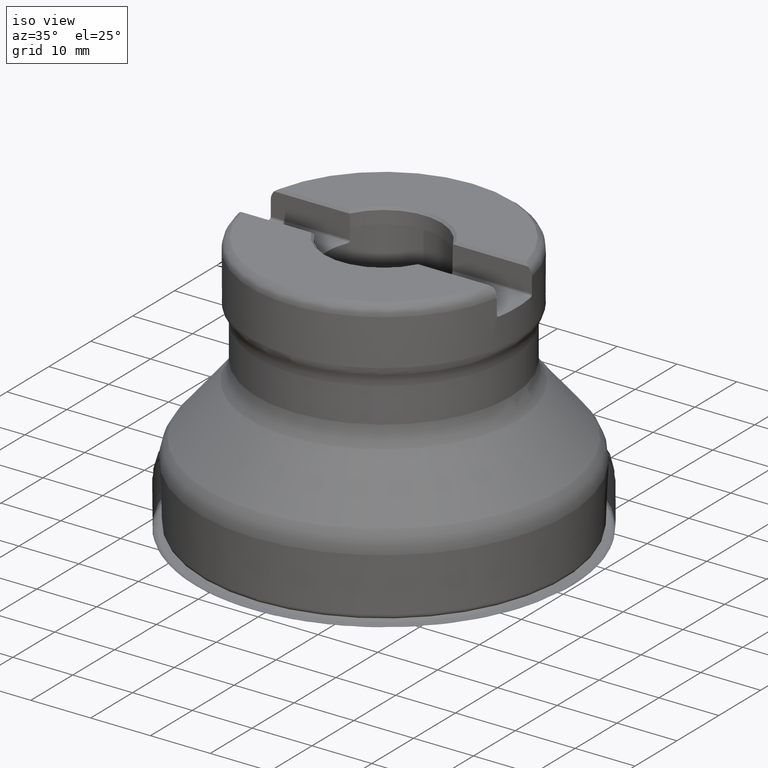
[diagram: clean part render]
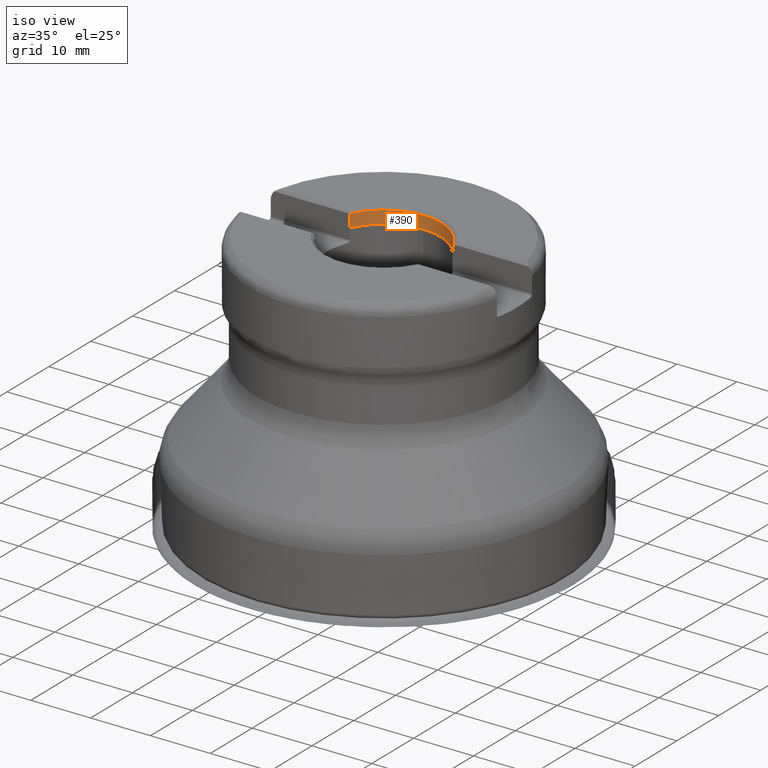
[diagram: same view with one face highlighted and labeled with its STEP entity id]
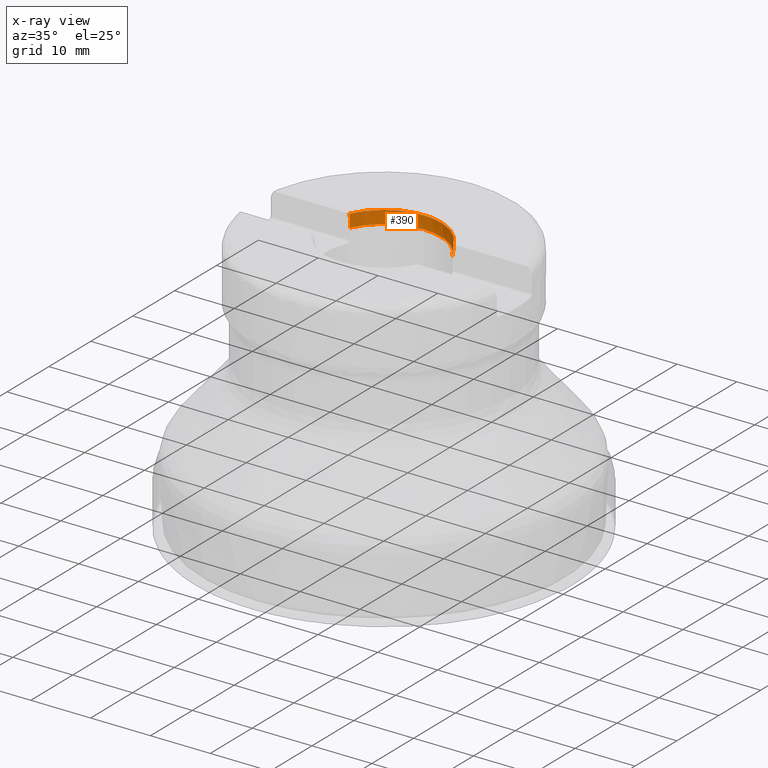
[diagram: x-ray of the same camera — body ghosted, the highlighted face saturated]
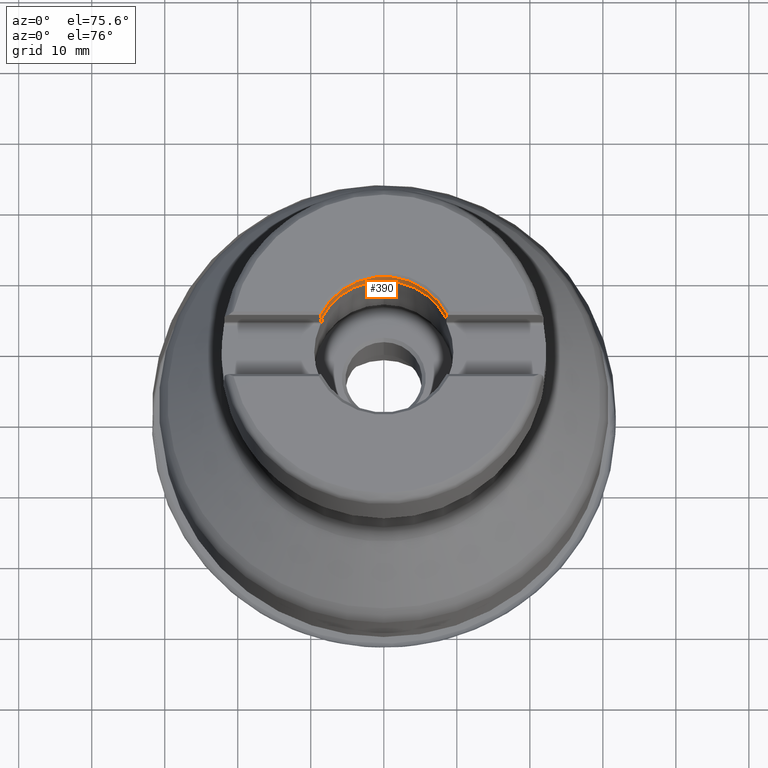
[diagram: same view with one face highlighted and labeled with its STEP entity id]
A machine part, iso view. The second image highlights one B-rep face of the part: STEP entity #390.
The next image is the same camera in x-ray: the body ghosted, the highlighted face saturated — about 0% of this face is hidden behind the body in this view.
A second angle (auxiliary view) of the same face is appended — the face is thin or edge-on in the first view.
In plain terms, the highlighted conical surface has half-angle 2 deg.
Its self-contained STEP definition (entity closure, byte-faithful):
#282=CONICAL_SURFACE('',#1260,9.525,2.);
#305=ELLIPSE('',#1208,13.3842309592042,9.45830817745474);
#306=ELLIPSE('',#1213,13.3842309592042,9.45830817745474);
#390=ADVANCED_FACE('',(#471),#282,.F.);
#471=FACE_OUTER_BOUND('',#513,.T.);
#513=EDGE_LOOP('',(#796,#797,#798,#799,#800,#801));
#611=CIRCLE('',#1211,9.59834637960622);
#635=CIRCLE('',#1259,9.525);
#796=ORIENTED_EDGE('',*,*,#1034,.T.);
#797=ORIENTED_EDGE('',*,*,#1037,.T.);
#798=ORIENTED_EDGE('',*,*,#1084,.F.);
#799=ORIENTED_EDGE('',*,*,#1089,.F.);
#800=ORIENTED_EDGE('',*,*,#1086,.F.);
#801=ORIENTED_EDGE('',*,*,#1030,.T.);
#928=VERTEX_POINT('',#1967);
#929=VERTEX_POINT('',#1969);
#931=VERTEX_POINT('',#1978);
#932=VERTEX_POINT('',#1983);
#969=VERTEX_POINT('',#2231);
#970=VERTEX_POINT('',#2241);
#1030=EDGE_CURVE('',#929,#928,#305,.T.);
#1034=EDGE_CURVE('',#928,#931,#611,.T.);
#1037=EDGE_CURVE('',#931,#932,#306,.T.);
#1084=EDGE_CURVE('',#969,#932,#1171,.T.);
#1086=EDGE_CURVE('',#929,#970,#1172,.T.);
#1089=EDGE_CURVE('',#970,#969,#635,.T.);
#1171=B_SPLINE_CURVE_WITH_KNOTS('',3,(#2224,#2225,#2226,#2227,#2228,#2229,
#2230),.UNSPECIFIED.,.F.,.F.,(4,3,4),(0.,0.616047071174649,1.),
 .UNSPECIFIED.);
#1172=B_SPLINE_CURVE_WITH_KNOTS('',3,(#2234,#2235,#2236,#2237,#2238,#2239,
#2240),.UNSPECIFIED.,.F.,.F.,(4,3,4),(0.,0.383952928825359,1.),
 .UNSPECIFIED.);
#1208=AXIS2_PLACEMENT_3D('',#1968,#1351,#1352);
#1211=AXIS2_PLACEMENT_3D('',#1979,#1358,#1359);
#1213=AXIS2_PLACEMENT_3D('',#1984,#1364,#1365);
#1259=AXIS2_PLACEMENT_3D('',#2246,#1472,#1473);
#1260=AXIS2_PLACEMENT_3D('',#2247,#1474,#1475);
#1351=DIRECTION('',(0.,-0.707106781186549,0.707106781186546));
#1352=DIRECTION('',(0.,0.707106781186546,0.707106781186549));
#1358=DIRECTION('',(0.,1.17145536458252E-15,1.));
#1359=DIRECTION('',(0.,1.,-1.44585194771683E-15));
#1364=DIRECTION('',(0.,-0.707106781186549,0.707106781186546));
#1365=DIRECTION('',(0.,0.707106781186546,0.707106781186549));
#1472=DIRECTION('',(0.,1.17145536458252E-15,1.));
#1473=DIRECTION('',(0.,1.,-1.45698559662094E-15));
#1474=DIRECTION('',(0.,1.17145536458252E-15,1.));
#1475=DIRECTION('',(0.,-1.,-1.40508412497527E-15));
#1967=CARTESIAN_POINT('',(8.64260239353127,4.17536550378859,44.0503655037885));
#1968=CARTESIAN_POINT('',(0.,0.330492972621802,40.2054929726217));
#1969=CARTESIAN_POINT('',(8.64276478927566,4.17500000000005,44.05));
#1978=CARTESIAN_POINT('',(-8.64260239353127,4.17536550378859,44.0503655037885));
#1979=CARTESIAN_POINT('',(0.,5.1603036981234E-14,44.0503655037885));
#1983=CARTESIAN_POINT('',(-8.64276478927566,4.17500000000005,44.05));
#1984=CARTESIAN_POINT('',(0.,0.330492972621802,40.2054929726217));
#2224=CARTESIAN_POINT('',(-8.5612499087458,4.17500000000005,41.95));
#2225=CARTESIAN_POINT('',(-8.57800408030153,4.17500000000005,42.3812323602033));
#2226=CARTESIAN_POINT('',(-8.59474881750089,4.17500000000005,42.8124650870485));
#2227=CARTESIAN_POINT('',(-8.61148428441969,4.17500000000005,43.2436981735551));
#2228=CARTESIAN_POINT('',(-8.6219147074518,4.17500000000005,43.5124653098131));
#2229=CARTESIAN_POINT('',(-8.6323415294231,4.17500000000005,43.7812325858461));
#2230=CARTESIAN_POINT('',(-8.64276478927566,4.17500000000005,44.05));
#2231=CARTESIAN_POINT('',(-8.5612499087458,4.17500000000005,41.95));
#2234=CARTESIAN_POINT('',(8.64276478927566,4.17500000000005,44.05));
#2235=CARTESIAN_POINT('',(8.6323415294231,4.17500000000005,43.7812325858461));
#2236=CARTESIAN_POINT('',(8.6219147074518,4.17500000000005,43.5124653098131));
#2237=CARTESIAN_POINT('',(8.6114842844197,4.17500000000005,43.2436981735551));
#2238=CARTESIAN_POINT('',(8.5947488175009,4.17500000000005,42.8124650870485));
#2239=CARTESIAN_POINT('',(8.57800408030153,4.17500000000005,42.3812323602033));
#2240=CARTESIAN_POINT('',(8.5612499087458,4.17500000000005,41.95));
#2241=CARTESIAN_POINT('',(8.5612499087458,4.17500000000005,41.95));
#2246=CARTESIAN_POINT('',(0.,4.91425525442369E-14,41.95));
#2247=CARTESIAN_POINT('',(0.,4.91425525442369E-14,41.95));